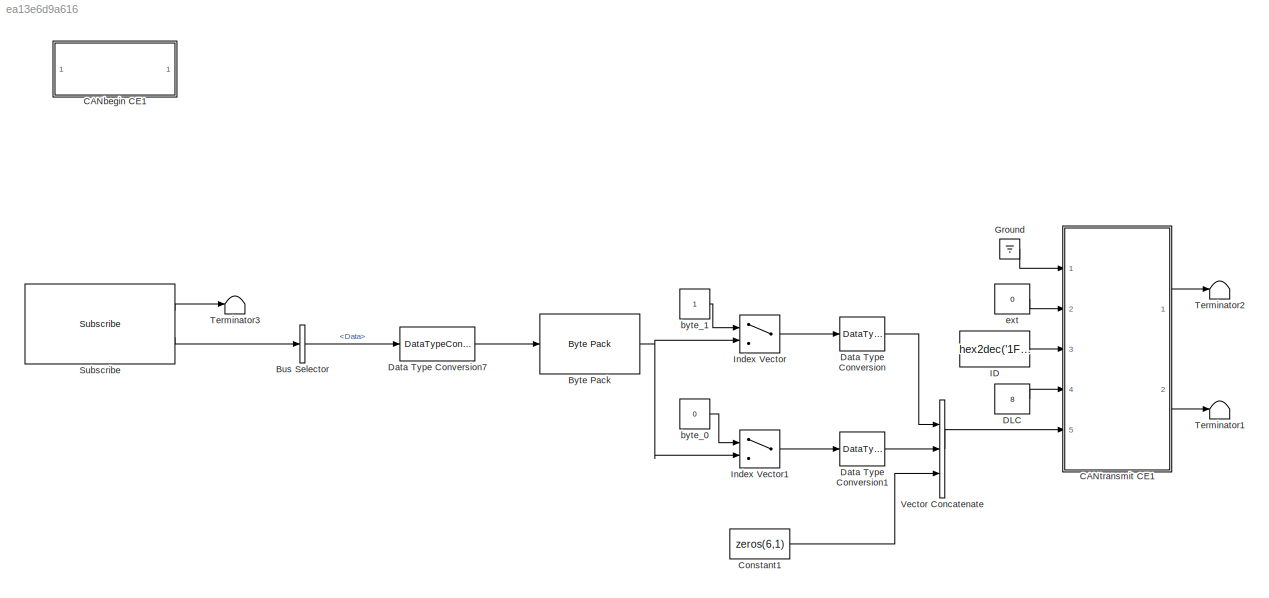
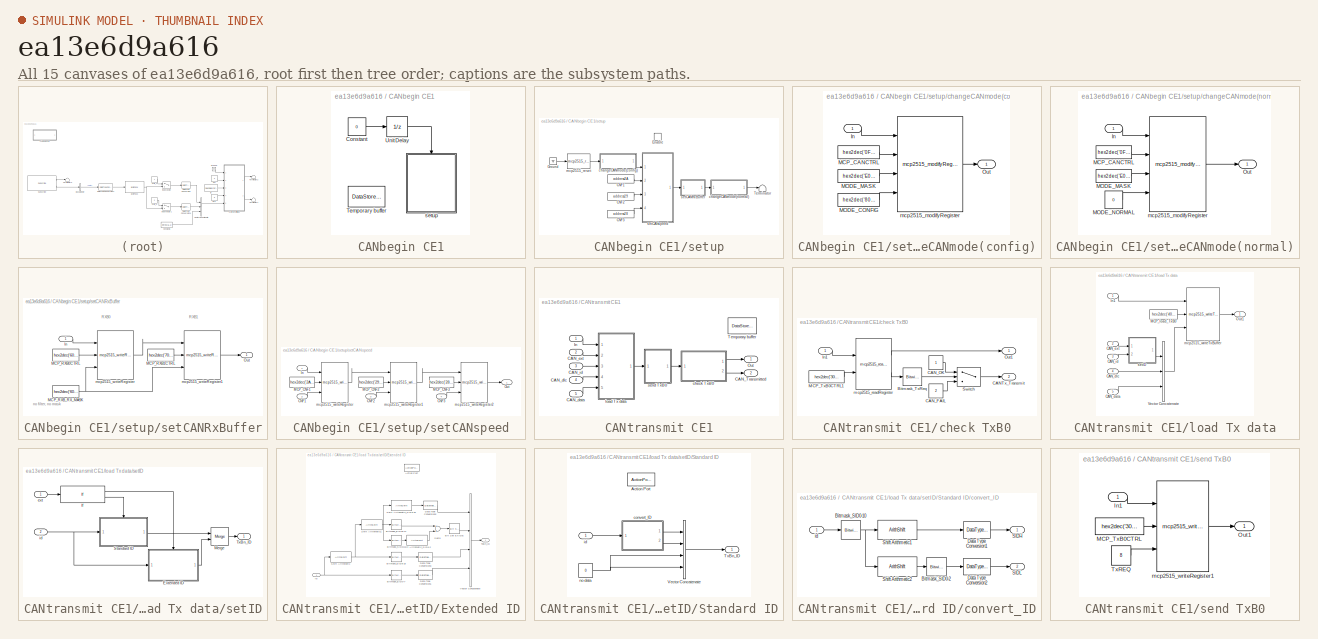
[diagram: thumbnail index - all 15 canvases of the model, root first then tree order]
MODEL slx_ea13e6d9a616
KIND model
CONFIG AbsTol = auto
CONFIG EnableMultiTasking = on
CONFIG FixedStep = 0.01
CONFIG MaxStep = auto
CONFIG MinStep = auto
CONFIG RelTol = 1e-3
CONFIG SampleTimeConstraint = Unconstrained
CONFIG Solver = FixedStepDiscrete
CONFIG SolverName = FixedStepDiscrete
CONFIG StartTime = 0.0
CONFIG StopTime = Inf
BLOCK [BusSelector] Bus Selector
  OutputAsBus = off
  OutputSignals = Data
  Ports = [1, 1]
BLOCK [Reference] Byte Pack  REF=svdutilitieslib/Byte Pack
  Ports = [1, 1]
  SourceBlock = svdutilitieslib/Byte Pack
  SourceProductBaseCode = ECCORTEXA
  SourceProductName = Embedded Coder Support Package for ARM Cortex-A Processors
  SourceType = Byte pack
BLOCK [SubSystem] CANbegin CE1
  Ports = []
  RTWSystemCode = Nonreusable function
  RequestExecContextInheritance = off
  TreatAsAtomicUnit = on
BLOCK [Constant] CANbegin CE1/Constant
  OutDataTypeStr = boolean
  SampleTime = -1
  Value = 0
BLOCK [DataStoreMemory] CANbegin CE1/Temporary buffer
  DataStoreName = temp_1byte
  OutDataTypeStr = uint8
  ReadBeforeWriteMsg = warning
  ShowAdditionalParam = off
  SignalType = real
  WriteAfterReadMsg = warning
  WriteAfterWriteMsg = warning
BLOCK [UnitDelay] CANbegin CE1/Unit Delay
  HasFrameUpgradeWarning = on
  InitialCondition = 1
  SampleTime = -1
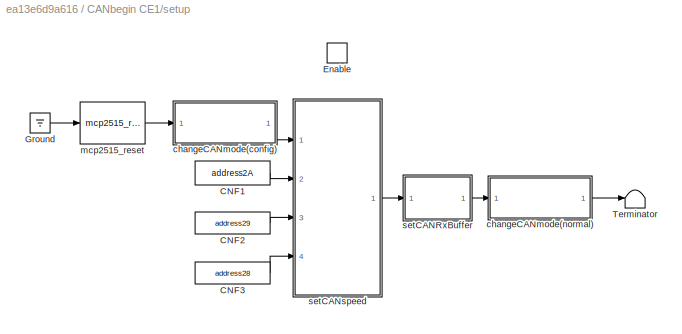
BLOCK [SubSystem] CANbegin CE1/setup
  Ports = [0, 0, 1]
  RTWFileNameOpts = Use subsystem name
  RTWSystemCode = Nonreusable function
  RequestExecContextInheritance = off
  TreatAsAtomicUnit = on
BLOCK [Constant] CANbegin CE1/setup/CNF1
  OutDataTypeStr = uint8
  Value = address2A
BLOCK [Constant] CANbegin CE1/setup/CNF2
  OutDataTypeStr = uint8
  Value = address29
BLOCK [Constant] CANbegin CE1/setup/CNF3
  OutDataTypeStr = uint8
  Value = address28
BLOCK [EnablePort] CANbegin CE1/setup/Enable
  Ports = []
BLOCK [Ground] CANbegin CE1/setup/Ground
BLOCK [Terminator] CANbegin CE1/setup/Terminator
BLOCK [SubSystem] CANbegin CE1/setup/changeCANmode(config)
  Ports = [1, 1]
  RequestExecContextInheritance = off
  TreatAsAtomicUnit = on
BLOCK [Inport] CANbegin CE1/setup/changeCANmode(config)/In
  IconDisplay = Port number
BLOCK [Constant] CANbegin CE1/setup/changeCANmode(config)/MCP_CANCTRL
  OutDataTypeStr = uint8
  Value = hex2dec('0F')
BLOCK [Constant] CANbegin CE1/setup/changeCANmode(config)/MODE_CONFIG
  OutDataTypeStr = uint8
  Value = hex2dec('80')
BLOCK [Constant] CANbegin CE1/setup/changeCANmode(config)/MODE_MASK
  OutDataTypeStr = uint8
  Value = hex2dec('E0')
BLOCK [Outport] CANbegin CE1/setup/changeCANmode(config)/Out
  IconDisplay = Port number
BLOCK [Reference] CANbegin CE1/setup/changeCANmode(config)/mcp2515_modifyRegister  REF=mcp2515lib/CAN application/mcp2515 driver CE1/mcp2515_modifyRegister
  Ports = [4, 1]
  SourceBlock = mcp2515lib/CAN application/mcp2515 driver CE1/mcp2515_modifyRegister
  SourceProductName = CAN device driver for mcp2515
  SourceType = SubSystem
BLOCK [SubSystem] CANbegin CE1/setup/changeCANmode(normal)
  Ports = [1, 1]
  RequestExecContextInheritance = off
  TreatAsAtomicUnit = on
BLOCK [Inport] CANbegin CE1/setup/changeCANmode(normal)/In
  IconDisplay = Port number
BLOCK [Constant] CANbegin CE1/setup/changeCANmode(normal)/MCP_CANCTRL
  OutDataTypeStr = uint8
  Value = hex2dec('0F')
BLOCK [Constant] CANbegin CE1/setup/changeCANmode(normal)/MODE_MASK
  OutDataTypeStr = uint8
  Value = hex2dec('E0')
BLOCK [Constant] CANbegin CE1/setup/changeCANmode(normal)/MODE_NORMAL
  OutDataTypeStr = uint8
  Value = 0
BLOCK [Outport] CANbegin CE1/setup/changeCANmode(normal)/Out
  IconDisplay = Port number
BLOCK [Reference] CANbegin CE1/setup/changeCANmode(normal)/mcp2515_modifyRegister  REF=mcp2515lib/CAN application/mcp2515 driver CE1/mcp2515_modifyRegister
  Ports = [4, 1]
  SourceBlock = mcp2515lib/CAN application/mcp2515 driver CE1/mcp2515_modifyRegister
  SourceProductName = CAN device driver for mcp2515
  SourceType = SubSystem
BLOCK [Reference] CANbegin CE1/setup/mcp2515_reset  REF=mcp2515lib/CAN application/mcp2515 driver CE1/mcp2515_reset
  Ports = [1, 1]
  SourceBlock = mcp2515lib/CAN application/mcp2515 driver CE1/mcp2515_reset
  SourceProductName = CAN device driver for mcp2515
  SourceType = SubSystem
BLOCK [SubSystem] CANbegin CE1/setup/setCANRxBuffer
  Ports = [1, 1]
  RequestExecContextInheritance = off
  TreatAsAtomicUnit = on
BLOCK [Inport] CANbegin CE1/setup/setCANRxBuffer/In
  IconDisplay = Port number
BLOCK [Constant] CANbegin CE1/setup/setCANRxBuffer/MCP_RXB0CTRL
  OutDataTypeStr = uint8
  Value = hex2dec('60')
BLOCK [Constant] CANbegin CE1/setup/setCANRxBuffer/MCP_RXB1CTRL
  OutDataTypeStr = uint8
  Value = hex2dec('70')
BLOCK [Constant] CANbegin CE1/setup/setCANRxBuffer/MCP_RXB_RX_MASK
  OutDataTypeStr = uint8
  Value = hex2dec('60')
BLOCK [Outport] CANbegin CE1/setup/setCANRxBuffer/Out
  IconDisplay = Port number
BLOCK [Reference] CANbegin CE1/setup/setCANRxBuffer/mcp2515_writeRegister  REF=mcp2515lib/CAN application/mcp2515 driver CE1/mcp2515_writeRegister
  Ports = [3, 1]
  SourceBlock = mcp2515lib/CAN application/mcp2515 driver CE1/mcp2515_writeRegister
  SourceProductName = CAN device driver for mcp2515
  SourceType = SubSystem
BLOCK [Reference] CANbegin CE1/setup/setCANRxBuffer/mcp2515_writeRegister1  REF=mcp2515lib/CAN application/mcp2515 driver CE1/mcp2515_writeRegister
  Ports = [3, 1]
  SourceBlock = mcp2515lib/CAN application/mcp2515 driver CE1/mcp2515_writeRegister
  SourceProductName = CAN device driver for mcp2515
  SourceType = SubSystem
BLOCK [SubSystem] CANbegin CE1/setup/setCANspeed
  Ports = [4, 1]
  RequestExecContextInheritance = off
  TreatAsAtomicUnit = on
BLOCK [Inport] CANbegin CE1/setup/setCANspeed/CNF1
  IconDisplay = Port number
  Port = 2
BLOCK [Inport] CANbegin CE1/setup/setCANspeed/CNF2
  IconDisplay = Port number
  Port = 3
BLOCK [Inport] CANbegin CE1/setup/setCANspeed/CNF3
  IconDisplay = Port number
  Port = 4
BLOCK [Inport] CANbegin CE1/setup/setCANspeed/In
  IconDisplay = Port number
BLOCK [Constant] CANbegin CE1/setup/setCANspeed/MCP_CNF1
  OutDataTypeStr = uint8
  Value = hex2dec('2A')
BLOCK [Constant] CANbegin CE1/setup/setCANspeed/MCP_CNF2
  OutDataTypeStr = uint8
  Value = hex2dec('29')
BLOCK [Constant] CANbegin CE1/setup/setCANspeed/MCP_CNF3
  OutDataTypeStr = uint8
  Value = hex2dec('28')
BLOCK [Outport] CANbegin CE1/setup/setCANspeed/Out
  IconDisplay = Port number
BLOCK [Reference] CANbegin CE1/setup/setCANspeed/mcp2515_writeRegister  REF=mcp2515lib/CAN application/mcp2515 driver CE1/mcp2515_writeRegister
  Ports = [3, 1]
  SourceBlock = mcp2515lib/CAN application/mcp2515 driver CE1/mcp2515_writeRegister
  SourceProductName = CAN device driver for mcp2515
  SourceType = SubSystem
BLOCK [Reference] CANbegin CE1/setup/setCANspeed/mcp2515_writeRegister1  REF=mcp2515lib/CAN application/mcp2515 driver CE1/mcp2515_writeRegister
  Ports = [3, 1]
  SourceBlock = mcp2515lib/CAN application/mcp2515 driver CE1/mcp2515_writeRegister
  SourceProductName = CAN device driver for mcp2515
  SourceType = SubSystem
BLOCK [Reference] CANbegin CE1/setup/setCANspeed/mcp2515_writeRegister2  REF=mcp2515lib/CAN application/mcp2515 driver CE1/mcp2515_writeRegister
  Ports = [3, 1]
  SourceBlock = mcp2515lib/CAN application/mcp2515 driver CE1/mcp2515_writeRegister
  SourceProductName = CAN device driver for mcp2515
  SourceType = SubSystem
BLOCK [SubSystem] CANtransmit CE1
  Ports = [5, 2]
  RTWSystemCode = Reusable function
  RequestExecContextInheritance = off
  TreatAsAtomicUnit = on
BLOCK [Outport] CANtransmit CE1/CAN_Transmitted
  IconDisplay = Port number
  Port = 2
BLOCK [Inport] CANtransmit CE1/CAN_data
  IconDisplay = Port number
  Port = 5
BLOCK [Inport] CANtransmit CE1/CAN_dlc
  IconDisplay = Port number
  Port = 4
BLOCK [Inport] CANtransmit CE1/CAN_ext
  IconDisplay = Port number
  Port = 2
BLOCK [Inport] CANtransmit CE1/CAN_id
  IconDisplay = Port number
  Port = 3
BLOCK [Inport] CANtransmit CE1/In
  IconDisplay = Port number
BLOCK [Outport] CANtransmit CE1/Out
  IconDisplay = Port number
BLOCK [DataStoreMemory] CANtransmit CE1/Temporary buffer
  DataStoreName = temp_1byte
  OutDataTypeStr = uint8
  ReadBeforeWriteMsg = warning
  ShowAdditionalParam = off
  SignalType = real
  WriteAfterReadMsg = warning
  WriteAfterWriteMsg = warning
BLOCK [SubSystem] CANtransmit CE1/check TxB0
  Ports = [1, 2]
  RequestExecContextInheritance = off
  TreatAsAtomicUnit = on
BLOCK [Reference] CANtransmit CE1/check TxB0/Bitmask_TxReq  REF=simulink/Logic and Bit
Operations/Bitwise
Operator
  Ports = [1, 1]
  SourceBlock = simulink/Logic and Bit\nOperations/Bitwise\nOperator
  SourceProductBaseCode = SL
  SourceProductName = Simulink
  SourceType = Bitwise Operator
BLOCK [Outport] CANtransmit CE1/check TxB0/CANTx_Transmit
  IconDisplay = Port number
  Port = 2
BLOCK [Constant] CANtransmit CE1/check TxB0/CAN_FAIL
  OutDataTypeStr = int8
  Value = 2
BLOCK [Constant] CANtransmit CE1/check TxB0/CAN_OK
  OutDataTypeStr = int8
BLOCK [Inport] CANtransmit CE1/check TxB0/In1
  IconDisplay = Port number
BLOCK [Constant] CANtransmit CE1/check TxB0/MCP_TxB0CTRL1
  OutDataTypeStr = uint8
  Value = hex2dec('30')
BLOCK [Outport] CANtransmit CE1/check TxB0/Out1
  IconDisplay = Port number
BLOCK [Switch] CANtransmit CE1/check TxB0/Switch
  Criteria = u2 > Threshold
  InputSameDT = off
  SaturateOnIntegerOverflow = off
BLOCK [Reference] CANtransmit CE1/check TxB0/mcp2515_readRegister  REF=mcp2515lib/CAN application/mcp2515 driver CE1/mcp2515_readRegister
  Ports = [2, 2]
  SourceBlock = mcp2515lib/CAN application/mcp2515 driver CE1/mcp2515_readRegister
  SourceProductName = CAN device driver for mcp2515
  SourceType = SubSystem
BLOCK [SubSystem] CANtransmit CE1/load Tx data
  Ports = [5, 1]
  RequestExecContextInheritance = off
  TreatAsAtomicUnit = on
BLOCK [Inport] CANtransmit CE1/load Tx data/CAN_data
  IconDisplay = Port number
  Port = 5
BLOCK [Inport] CANtransmit CE1/load Tx data/CAN_dlc
  IconDisplay = Port number
  Port = 4
BLOCK [Inport] CANtransmit CE1/load Tx data/CAN_ext
  IconDisplay = Port number
  Port = 2
BLOCK [Inport] CANtransmit CE1/load Tx data/CAN_id
  IconDisplay = Port number
  Port = 3
BLOCK [Inport] CANtransmit CE1/load Tx data/In1
  IconDisplay = Port number
BLOCK [Constant] CANtransmit CE1/load Tx data/MCP_load_TxB0
  OutDataTypeStr = uint8
  Value = hex2dec('40')
BLOCK [Outport] CANtransmit CE1/load Tx data/Out1
  IconDisplay = Port number
BLOCK [Concatenate] CANtransmit CE1/load Tx data/Vector Concatenate
  NumInputs = 3
  Ports = [3, 1]
BLOCK [Reference] CANtransmit CE1/load Tx data/mcp2515_writeTxBuffer  REF=mcp2515lib/CAN application/mcp2515 driver CE1/mcp2515_writeTxBuffer
  Ports = [3, 1]
  SourceBlock = mcp2515lib/CAN application/mcp2515 driver CE1/mcp2515_writeTxBuffer
  SourceProductName = CAN device driver for mcp2515
  SourceType = SubSystem
BLOCK [SubSystem] CANtransmit CE1/load Tx data/setID
  Ports = [2, 1]
  RTWSystemCode = Inline
  RequestExecContextInheritance = off
  TreatAsAtomicUnit = on
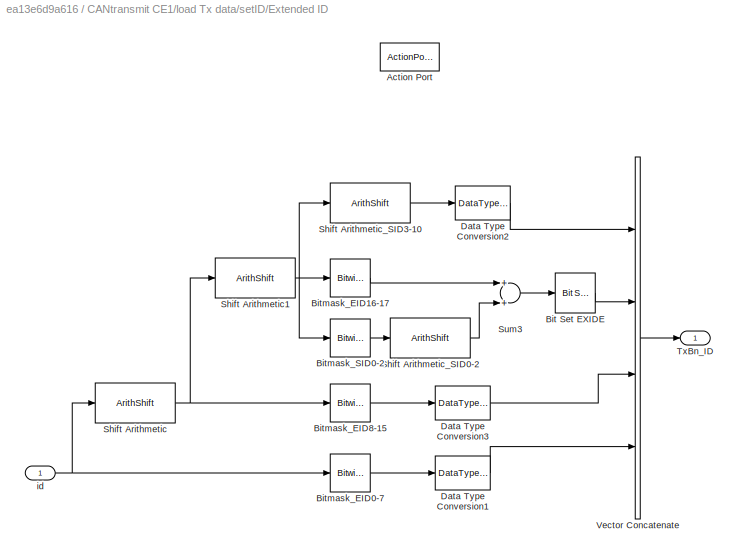
BLOCK [SubSystem] CANtransmit CE1/load Tx data/setID/Extended ID
  Ports = [1, 1, 0, 0, 0, 0, 0, 1]
  RequestExecContextInheritance = off
  TreatAsAtomicUnit = on
BLOCK [ActionPort] CANtransmit CE1/load Tx data/setID/Extended ID/Action Port
  ActionPortLabel = if(u1 > 0)
BLOCK [Reference] CANtransmit CE1/load Tx data/setID/Extended ID/Bit Set EXIDE  REF=simulink/Logic and Bit
Operations/Bit Set
  Ports = [1, 1]
  SourceBlock = simulink/Logic and Bit\nOperations/Bit Set
  SourceProductBaseCode = SL
  SourceProductName = Simulink
  SourceType = Bit Set
BLOCK [Reference] CANtransmit CE1/load Tx data/setID/Extended ID/Bitmask_EID0-7  REF=simulink/Logic and Bit
Operations/Bitwise
Operator
  Ports = [1, 1]
  SourceBlock = simulink/Logic and Bit\nOperations/Bitwise\nOperator
  SourceProductBaseCode = SL
  SourceProductName = Simulink
  SourceType = Bitwise Operator
BLOCK [Reference] CANtransmit CE1/load Tx data/setID/Extended ID/Bitmask_EID16-17  REF=simulink/Logic and Bit
Operations/Bitwise
Operator
  Ports = [1, 1]
  SourceBlock = simulink/Logic and Bit\nOperations/Bitwise\nOperator
  SourceProductBaseCode = SL
  SourceProductName = Simulink
  SourceType = Bitwise Operator
BLOCK [Reference] CANtransmit CE1/load Tx data/setID/Extended ID/Bitmask_EID8-15  REF=simulink/Logic and Bit
Operations/Bitwise
Operator
  Ports = [1, 1]
  SourceBlock = simulink/Logic and Bit\nOperations/Bitwise\nOperator
  SourceProductBaseCode = SL
  SourceProductName = Simulink
  SourceType = Bitwise Operator
BLOCK [Reference] CANtransmit CE1/load Tx data/setID/Extended ID/Bitmask_SID0-2  REF=simulink/Logic and Bit
Operations/Bitwise
Operator
  Ports = [1, 1]
  SourceBlock = simulink/Logic and Bit\nOperations/Bitwise\nOperator
  SourceProductBaseCode = SL
  SourceProductName = Simulink
  SourceType = Bitwise Operator
BLOCK [DataTypeConversion] CANtransmit CE1/load Tx data/setID/Extended ID/Data Type Conversion1
  OutDataTypeStr = uint8
  RndMeth = Simplest
  SaturateOnIntegerOverflow = off
BLOCK [DataTypeConversion] CANtransmit CE1/load Tx data/setID/Extended ID/Data Type Conversion2
  OutDataTypeStr = uint8
  RndMeth = Simplest
  SaturateOnIntegerOverflow = off
BLOCK [DataTypeConversion] CANtransmit CE1/load Tx data/setID/Extended ID/Data Type Conversion3
  OutDataTypeStr = uint8
  RndMeth = Simplest
  SaturateOnIntegerOverflow = off
BLOCK [ArithShift] CANtransmit CE1/load Tx data/setID/Extended ID/Shift Arithmetic
  BitShiftDirection = Right
  BitShiftNumber = 8
  InputPortMap = u0
  Ports = [1, 1]
BLOCK [ArithShift] CANtransmit CE1/load Tx data/setID/Extended ID/Shift Arithmetic1
  BitShiftDirection = Right
  BitShiftNumber = 8
  InputPortMap = u0
  Ports = [1, 1]
BLOCK [ArithShift] CANtransmit CE1/load Tx data/setID/Extended ID/Shift Arithmetic_SID0-2
  BitShiftDirection = Left
  BitShiftNumber = 3
  InputPortMap = u0
  Ports = [1, 1]
BLOCK [ArithShift] CANtransmit CE1/load Tx data/setID/Extended ID/Shift Arithmetic_SID3-10
  BitShiftDirection = Right
  BitShiftNumber = 5
  InputPortMap = u0
  Ports = [1, 1]
BLOCK [Sum] CANtransmit CE1/load Tx data/setID/Extended ID/Sum3
  InputSameDT = off
  OutDataTypeStr = uint8
  Ports = [2, 1]
  SaturateOnIntegerOverflow = off
BLOCK [Outport] CANtransmit CE1/load Tx data/setID/Extended ID/TxBn_ID
  IconDisplay = Port number
BLOCK [Concatenate] CANtransmit CE1/load Tx data/setID/Extended ID/Vector Concatenate
  NumInputs = 4
  Ports = [4, 1]
BLOCK [Inport] CANtransmit CE1/load Tx data/setID/Extended ID/id
  IconDisplay = Port number
BLOCK [If] CANtransmit CE1/load Tx data/setID/If
  Ports = [1, 2]
BLOCK [Merge] CANtransmit CE1/load Tx data/setID/Merge
  Ports = [2, 1]
BLOCK [SubSystem] CANtransmit CE1/load Tx data/setID/Standard ID
  Ports = [1, 1, 0, 0, 0, 0, 0, 1]
  RequestExecContextInheritance = off
  TreatAsAtomicUnit = on
BLOCK [ActionPort] CANtransmit CE1/load Tx data/setID/Standard ID/Action Port
  ActionPortLabel = else
BLOCK [Outport] CANtransmit CE1/load Tx data/setID/Standard ID/TxBn_ID
  IconDisplay = Port number
BLOCK [Concatenate] CANtransmit CE1/load Tx data/setID/Standard ID/Vector Concatenate
  NumInputs = 4
  Ports = [4, 1]
BLOCK [SubSystem] CANtransmit CE1/load Tx data/setID/Standard ID/convert_ID
  Ports = [1, 2]
  RequestExecContextInheritance = off
  TreatAsAtomicUnit = on
BLOCK [Reference] CANtransmit CE1/load Tx data/setID/Standard ID/convert_ID/Bitmask_SID0-10  REF=simulink/Logic and Bit
Operations/Bitwise
Operator
  Ports = [1, 1]
  SourceBlock = simulink/Logic and Bit\nOperations/Bitwise\nOperator
  SourceProductBaseCode = SL
  SourceProductName = Simulink
  SourceType = Bitwise Operator
BLOCK [Reference] CANtransmit CE1/load Tx data/setID/Standard ID/convert_ID/Bitmask_SID0-2  REF=simulink/Logic and Bit
Operations/Bitwise
Operator
  Ports = [1, 1]
  SourceBlock = simulink/Logic and Bit\nOperations/Bitwise\nOperator
  SourceProductBaseCode = SL
  SourceProductName = Simulink
  SourceType = Bitwise Operator
BLOCK [DataTypeConversion] CANtransmit CE1/load Tx data/setID/Standard ID/convert_ID/Data Type Conversion1
  OutDataTypeStr = uint8
  RndMeth = Simplest
  SaturateOnIntegerOverflow = off
BLOCK [DataTypeConversion] CANtransmit CE1/load Tx data/setID/Standard ID/convert_ID/Data Type Conversion2
  OutDataTypeStr = uint8
  RndMeth = Simplest
  SaturateOnIntegerOverflow = off
BLOCK [Outport] CANtransmit CE1/load Tx data/setID/Standard ID/convert_ID/SIDH
  IconDisplay = Port number
BLOCK [Outport] CANtransmit CE1/load Tx data/setID/Standard ID/convert_ID/SIDL
  IconDisplay = Port number
  Port = 2
BLOCK [ArithShift] CANtransmit CE1/load Tx data/setID/Standard ID/convert_ID/Shift Arithmetic1
  BitShiftDirection = Right
  BitShiftNumber = 3
  InputPortMap = u0
  Ports = [1, 1]
BLOCK [ArithShift] CANtransmit CE1/load Tx data/setID/Standard ID/convert_ID/Shift Arithmetic2
  BitShiftDirection = Left
  BitShiftNumber = 5
  InputPortMap = u0
  Ports = [1, 1]
BLOCK [Inport] CANtransmit CE1/load Tx data/setID/Standard ID/convert_ID/id
  IconDisplay = Port number
BLOCK [Inport] CANtransmit CE1/load Tx data/setID/Standard ID/id
  IconDisplay = Port number
BLOCK [Constant] CANtransmit CE1/load Tx data/setID/Standard ID/no data
  OutDataTypeStr = uint8
  Value = 0
BLOCK [Outport] CANtransmit CE1/load Tx data/setID/TxBn_ID
  IconDisplay = Port number
BLOCK [Inport] CANtransmit CE1/load Tx data/setID/ext
  IconDisplay = Port number
BLOCK [Inport] CANtransmit CE1/load Tx data/setID/id
  IconDisplay = Port number
  Port = 2
BLOCK [SubSystem] CANtransmit CE1/send TxB0
  Ports = [1, 1]
  RequestExecContextInheritance = off
  TreatAsAtomicUnit = on
BLOCK [Inport] CANtransmit CE1/send TxB0/In1
  IconDisplay = Port number
BLOCK [Constant] CANtransmit CE1/send TxB0/MCP_TxB0CTRL
  OutDataTypeStr = uint8
  Value = hex2dec('30')
BLOCK [Outport] CANtransmit CE1/send TxB0/Out1
  IconDisplay = Port number
BLOCK [Constant] CANtransmit CE1/send TxB0/TxREQ
  OutDataTypeStr = uint8
  Value = 8
BLOCK [Reference] CANtransmit CE1/send TxB0/mcp2515_writeRegister1  REF=mcp2515lib/CAN application/mcp2515 driver CE1/mcp2515_writeRegister
  Ports = [3, 1]
  SourceBlock = mcp2515lib/CAN application/mcp2515 driver CE1/mcp2515_writeRegister
  SourceProductName = CAN device driver for mcp2515
  SourceType = SubSystem
BLOCK [Constant] Constant1
  OutDataTypeStr = uint8
  Value = zeros(6,1)
BLOCK [Constant] DLC
  OutDataTypeStr = uint8
  Value = 8
BLOCK [DataTypeConversion] Data Type Conversion
  OutDataTypeStr = uint8
  RndMeth = Floor
  SaturateOnIntegerOverflow = off
BLOCK [DataTypeConversion] Data Type Conversion1
  OutDataTypeStr = uint8
  RndMeth = Floor
  SaturateOnIntegerOverflow = off
BLOCK [DataTypeConversion] Data Type Conversion7
  OutDataTypeStr = int16
  RndMeth = Floor
  SaturateOnIntegerOverflow = off
BLOCK [Ground] Ground
BLOCK [Constant] ID
  OutDataTypeStr = uint32
  Value = hex2dec('1FF')
BLOCK [MultiPortSwitch] Index Vector
  DataPortOrder = Zero-based contiguous
  InputSameDT = off
  Inputs = 1
  Ports = [2, 1]
  SaturateOnIntegerOverflow = off
  zeroidx = on
BLOCK [MultiPortSwitch] Index Vector1
  DataPortOrder = Zero-based contiguous
  InputSameDT = off
  Inputs = 1
  Ports = [2, 1]
  SaturateOnIntegerOverflow = off
  zeroidx = on
BLOCK [Reference] Subscribe  REF=robotlib/Subscribe
  Ports = [0, 2]
  SourceBlock = robotlib/Subscribe
  SourceProductBaseCode = RR
  SourceProductName = ROS Toolbox
  SourceType = ROS Subscribe
BLOCK [Terminator] Terminator1
BLOCK [Terminator] Terminator2
BLOCK [Terminator] Terminator3
BLOCK [Concatenate] Vector Concatenate
  NumInputs = 3
  Ports = [3, 1]
BLOCK [Constant] byte_0
  OutDataTypeStr = uint8
  Value = 0
BLOCK [Constant] byte_1
  OutDataTypeStr = uint8
BLOCK [Constant] ext
  OutDataTypeStr = uint8
  Value = 0
ANNOTATION CANbegin CE1/setup/setCANRxBuffer: RXB0
ANNOTATION CANbegin CE1/setup/setCANRxBuffer: RXB1
ANNOTATION CANbegin CE1/setup/setCANRxBuffer: no filter, no mask
LINE Bus Selector:1 -> Data Type Conversion7:1
NET Byte Pack:1 -> Index Vector1:2, Index Vector:2
LINE CANtransmit CE1/CAN_data:1 -> CANtransmit CE1/load Tx data:5
LINE CANtransmit CE1/CAN_dlc:1 -> CANtransmit CE1/load Tx data:4
LINE CANtransmit CE1/CAN_ext:1 -> CANtransmit CE1/load Tx data:2
LINE CANtransmit CE1/CAN_id:1 -> CANtransmit CE1/load Tx data:3
LINE CANtransmit CE1/In:1 -> CANtransmit CE1/load Tx data:1
LINE CANtransmit CE1/check TxB0/Bitmask_TxReq:1 -> CANtransmit CE1/check TxB0/Switch:2
LINE CANtransmit CE1/check TxB0/CAN_FAIL:1 -> CANtransmit CE1/check TxB0/Switch:3
LINE CANtransmit CE1/check TxB0/CAN_OK:1 -> CANtransmit CE1/check TxB0/Switch:1
LINE CANtransmit CE1/check TxB0/In1:1 -> CANtransmit CE1/check TxB0/mcp2515_readRegister:1
LINE CANtransmit CE1/check TxB0/MCP_TxB0CTRL1:1 -> CANtransmit CE1/check TxB0/mcp2515_readRegister:2
LINE CANtransmit CE1/check TxB0/Switch:1 -> CANtransmit CE1/check TxB0/CANTx_Transmit:1
LINE CANtransmit CE1/check TxB0/mcp2515_readRegister:1 -> CANtransmit CE1/check TxB0/Out1:1
LINE CANtransmit CE1/check TxB0/mcp2515_readRegister:2 -> CANtransmit CE1/check TxB0/Bitmask_TxReq:1
LINE CANtransmit CE1/check TxB0:1 -> CANtransmit CE1/Out:1
LINE CANtransmit CE1/check TxB0:2 -> CANtransmit CE1/CAN_Transmitted:1
LINE CANtransmit CE1/load Tx data/CAN_data:1 -> CANtransmit CE1/load Tx data/Vector Concatenate:3
LINE CANtransmit CE1/load Tx data/CAN_dlc:1 -> CANtransmit CE1/load Tx data/Vector Concatenate:2
LINE CANtransmit CE1/load Tx data/CAN_ext:1 -> CANtransmit CE1/load Tx data/setID:1
LINE CANtransmit CE1/load Tx data/CAN_id:1 -> CANtransmit CE1/load Tx data/setID:2
LINE CANtransmit CE1/load Tx data/In1:1 -> CANtransmit CE1/load Tx data/mcp2515_writeTxBuffer:1
LINE CANtransmit CE1/load Tx data/MCP_load_TxB0:1 -> CANtransmit CE1/load Tx data/mcp2515_writeTxBuffer:2
LINE CANtransmit CE1/load Tx data/Vector Concatenate:1 -> CANtransmit CE1/load Tx data/mcp2515_writeTxBuffer:3
LINE CANtransmit CE1/load Tx data/mcp2515_writeTxBuffer:1 -> CANtransmit CE1/load Tx data/Out1:1
LINE CANtransmit CE1/load Tx data/setID/Extended ID/Bit Set EXIDE:1 -> CANtransmit CE1/load Tx data/setID/Extended ID/Vector Concatenate:2
LINE CANtransmit CE1/load Tx data/setID/Extended ID/Bitmask_EID0-7:1 -> CANtransmit CE1/load Tx data/setID/Extended ID/Data Type Conversion1:1
LINE CANtransmit CE1/load Tx data/setID/Extended ID/Bitmask_EID16-17:1 -> CANtransmit CE1/load Tx data/setID/Extended ID/Sum3:1
LINE CANtransmit CE1/load Tx data/setID/Extended ID/Bitmask_EID8-15:1 -> CANtransmit CE1/load Tx data/setID/Extended ID/Data Type Conversion3:1
LINE CANtransmit CE1/load Tx data/setID/Extended ID/Bitmask_SID0-2:1 -> CANtransmit CE1/load Tx data/setID/Extended ID/Shift Arithmetic_SID0-2:1
LINE CANtransmit CE1/load Tx data/setID/Extended ID/Data Type Conversion1:1 -> CANtransmit CE1/load Tx data/setID/Extended ID/Vector Concatenate:4
LINE CANtransmit CE1/load Tx data/setID/Extended ID/Data Type Conversion2:1 -> CANtransmit CE1/load Tx data/setID/Extended ID/Vector Concatenate:1
LINE CANtransmit CE1/load Tx data/setID/Extended ID/Data Type Conversion3:1 -> CANtransmit CE1/load Tx data/setID/Extended ID/Vector Concatenate:3
NET CANtransmit CE1/load Tx data/setID/Extended ID/Shift Arithmetic1:1 -> CANtransmit CE1/load Tx data/setID/Extended ID/Bitmask_EID16-17:1, CANtransmit CE1/load Tx data/setID/Extended ID/Bitmask_SID0-2:1, CANtransmit CE1/load Tx data/setID/Extended ID/Shift Arithmetic_SID3-10:1
NET CANtransmit CE1/load Tx data/setID/Extended ID/Shift Arithmetic:1 -> CANtransmit CE1/load Tx data/setID/Extended ID/Bitmask_EID8-15:1, CANtransmit CE1/load Tx data/setID/Extended ID/Shift Arithmetic1:1
LINE CANtransmit CE1/load Tx data/setID/Extended ID/Shift Arithmetic_SID0-2:1 -> CANtransmit CE1/load Tx data/setID/Extended ID/Sum3:2
LINE CANtransmit CE1/load Tx data/setID/Extended ID/Shift Arithmetic_SID3-10:1 -> CANtransmit CE1/load Tx data/setID/Extended ID/Data Type Conversion2:1
LINE CANtransmit CE1/load Tx data/setID/Extended ID/Sum3:1 -> CANtransmit CE1/load Tx data/setID/Extended ID/Bit Set EXIDE:1
LINE CANtransmit CE1/load Tx data/setID/Extended ID/Vector Concatenate:1 -> CANtransmit CE1/load Tx data/setID/Extended ID/TxBn_ID:1
NET CANtransmit CE1/load Tx data/setID/Extended ID/id:1 -> CANtransmit CE1/load Tx data/setID/Extended ID/Bitmask_EID0-7:1, CANtransmit CE1/load Tx data/setID/Extended ID/Shift Arithmetic:1
LINE CANtransmit CE1/load Tx data/setID/Extended ID:1 -> CANtransmit CE1/load Tx data/setID/Merge:2
LINE CANtransmit CE1/load Tx data/setID/If:1 -> CANtransmit CE1/load Tx data/setID/Extended ID:ifaction
LINE CANtransmit CE1/load Tx data/setID/If:2 -> CANtransmit CE1/load Tx data/setID/Standard ID:ifaction
LINE CANtransmit CE1/load Tx data/setID/Merge:1 -> CANtransmit CE1/load Tx data/setID/TxBn_ID:1
LINE CANtransmit CE1/load Tx data/setID/Standard ID/Vector Concatenate:1 -> CANtransmit CE1/load Tx data/setID/Standard ID/TxBn_ID:1
NET CANtransmit CE1/load Tx data/setID/Standard ID/convert_ID/Bitmask_SID0-10:1 -> CANtransmit CE1/load Tx data/setID/Standard ID/convert_ID/Shift Arithmetic1:1, CANtransmit CE1/load Tx data/setID/Standard ID/convert_ID/Shift Arithmetic2:1
LINE CANtransmit CE1/load Tx data/setID/Standard ID/convert_ID/Bitmask_SID0-2:1 -> CANtransmit CE1/load Tx data/setID/Standard ID/convert_ID/Data Type Conversion2:1
LINE CANtransmit CE1/load Tx data/setID/Standard ID/convert_ID/Data Type Conversion1:1 -> CANtransmit CE1/load Tx data/setID/Standard ID/convert_ID/SIDH:1
LINE CANtransmit CE1/load Tx data/setID/Standard ID/convert_ID/Data Type Conversion2:1 -> CANtransmit CE1/load Tx data/setID/Standard ID/convert_ID/SIDL:1
LINE CANtransmit CE1/load Tx data/setID/Standard ID/convert_ID/Shift Arithmetic1:1 -> CANtransmit CE1/load Tx data/setID/Standard ID/convert_ID/Data Type Conversion1:1
LINE CANtransmit CE1/load Tx data/setID/Standard ID/convert_ID/Shift Arithmetic2:1 -> CANtransmit CE1/load Tx data/setID/Standard ID/convert_ID/Bitmask_SID0-2:1
LINE CANtransmit CE1/load Tx data/setID/Standard ID/convert_ID/id:1 -> CANtransmit CE1/load Tx data/setID/Standard ID/convert_ID/Bitmask_SID0-10:1
LINE CANtransmit CE1/load Tx data/setID/Standard ID/convert_ID:1 -> CANtransmit CE1/load Tx data/setID/Standard ID/Vector Concatenate:1
LINE CANtransmit CE1/load Tx data/setID/Standard ID/convert_ID:2 -> CANtransmit CE1/load Tx data/setID/Standard ID/Vector Concatenate:2
LINE CANtransmit CE1/load Tx data/setID/Standard ID/id:1 -> CANtransmit CE1/load Tx data/setID/Standard ID/convert_ID:1
NET CANtransmit CE1/load Tx data/setID/Standard ID/no data:1 -> CANtransmit CE1/load Tx data/setID/Standard ID/Vector Concatenate:3, CANtransmit CE1/load Tx data/setID/Standard ID/Vector Concatenate:4
LINE CANtransmit CE1/load Tx data/setID/Standard ID:1 -> CANtransmit CE1/load Tx data/setID/Merge:1
LINE CANtransmit CE1/load Tx data/setID/ext:1 -> CANtransmit CE1/load Tx data/setID/If:1
NET CANtransmit CE1/load Tx data/setID/id:1 -> CANtransmit CE1/load Tx data/setID/Extended ID:1, CANtransmit CE1/load Tx data/setID/Standard ID:1
LINE CANtransmit CE1/load Tx data/setID:1 -> CANtransmit CE1/load Tx data/Vector Concatenate:1
LINE CANtransmit CE1/load Tx data:1 -> CANtransmit CE1/send TxB0:1
LINE CANtransmit CE1/send TxB0/In1:1 -> CANtransmit CE1/send TxB0/mcp2515_writeRegister1:1
LINE CANtransmit CE1/send TxB0/MCP_TxB0CTRL:1 -> CANtransmit CE1/send TxB0/mcp2515_writeRegister1:2
LINE CANtransmit CE1/send TxB0/TxREQ:1 -> CANtransmit CE1/send TxB0/mcp2515_writeRegister1:3
LINE CANtransmit CE1/send TxB0/mcp2515_writeRegister1:1 -> CANtransmit CE1/send TxB0/Out1:1
LINE CANtransmit CE1/send TxB0:1 -> CANtransmit CE1/check TxB0:1
LINE CANtransmit CE1:1 -> Terminator2:1
LINE CANtransmit CE1:2 -> Terminator1:1
LINE Constant1:1 -> Vector Concatenate:3
LINE DLC:1 -> CANtransmit CE1:4
LINE Data Type Conversion1:1 -> Vector Concatenate:2
LINE Data Type Conversion7:1 -> Byte Pack:1
LINE Data Type Conversion:1 -> Vector Concatenate:1
LINE Ground:1 -> CANtransmit CE1:1
LINE ID:1 -> CANtransmit CE1:3
LINE Index Vector1:1 -> Data Type Conversion1:1
LINE Index Vector:1 -> Data Type Conversion:1
LINE Subscribe:1 -> Terminator3:1
LINE Subscribe:2 -> Bus Selector:1
LINE Vector Concatenate:1 -> CANtransmit CE1:5
LINE byte_0:1 -> Index Vector1:1
LINE byte_1:1 -> Index Vector:1
LINE ext:1 -> CANtransmit CE1:2
note: NET lines group one-source signal fan-out (src -> all destinations, sorted); 1:1 wires keep LINE
